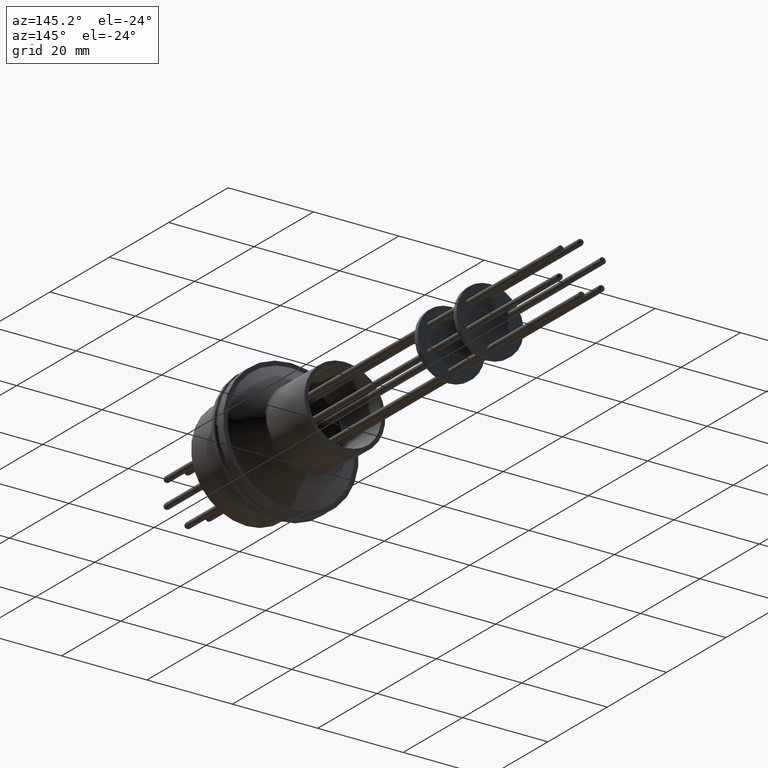
[diagram: clean part render]
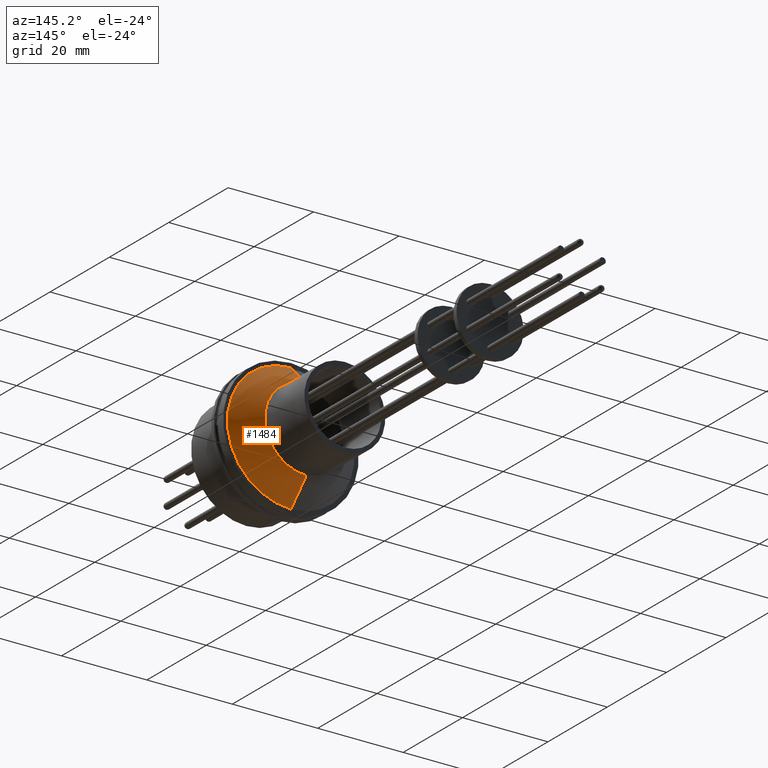
[diagram: same view with one face highlighted and labeled with its STEP entity id]
A machine part, auxiliary view. The second image highlights one B-rep face of the part: STEP entity #1484.
In plain terms, the highlighted conical surface has half-angle 45 deg.
Its self-contained STEP definition (entity closure, byte-faithful):
#1070 = AXIS2_PLACEMENT_3D ( 'NONE', #2669, #2704, #2668 ) ;
#1071 = AXIS2_PLACEMENT_3D ( 'NONE', #2695, #2699, #2700 ) ;
#1293 = AXIS2_PLACEMENT_3D ( 'NONE', #6244, #6245, #6246 ) ;
#1484 = ADVANCED_FACE ( 'NONE', ( #7101 ), #7094, .T. ) ;
#1535 = VERTEX_POINT ( 'NONE', #6089 ) ;
#1562 = VERTEX_POINT ( 'NONE', #6047 ) ;
#1630 = VERTEX_POINT ( 'NONE', #5945 ) ;
#1642 = VERTEX_POINT ( 'NONE', #5933 ) ;
#1927 = EDGE_LOOP ( 'NONE', ( #1953, #1954, #1955, #1956 ) ) ;
#1953 = ORIENTED_EDGE ( 'NONE', *, *, #4164, .T. ) ;
#1954 = ORIENTED_EDGE ( 'NONE', *, *, #4163, .T. ) ;
#1955 = ORIENTED_EDGE ( 'NONE', *, *, #4162, .T. ) ;
#1956 = ORIENTED_EDGE ( 'NONE', *, *, #4161, .F. ) ;
#2668 = DIRECTION ( 'NONE',  ( 0.0000000000000000000, 0.0000000000000000000, -1.000000000000000000 ) ) ;
#2669 = CARTESIAN_POINT ( 'NONE',  ( -0.02489983635234983100, 0.8499457045512126600, -1.707404996040164500E-017 ) ) ;
#2686 = DIRECTION ( 'NONE',  ( 0.0000000000000000000, -0.7071067811865450200, -0.7071067811865500200 ) ) ;
#2692 = CARTESIAN_POINT ( 'NONE',  ( -0.02489983635234983100, 0.6463060942444238700, -0.5859264068711952400 ) ) ;
#2693 = DIRECTION ( 'NONE',  ( 8.659560562354963700E-017, -0.7071067811865450200, 0.7071067811865500200 ) ) ;
#2694 = CARTESIAN_POINT ( 'NONE',  ( -0.02489983635234976200, 0.6463060942444238700, 0.5859264068711952400 ) ) ;
#2695 = CARTESIAN_POINT ( 'NONE',  ( -0.02489983635234983100, 0.6463060942444238700, 0.0000000000000000000 ) ) ;
#2699 = DIRECTION ( 'NONE',  ( -0.0000000000000000000, 1.000000000000000000, -0.0000000000000000000 ) ) ;
#2700 = DIRECTION ( 'NONE',  ( 0.0000000000000000000, 0.0000000000000000000, -1.000000000000000000 ) ) ;
#2704 = DIRECTION ( 'NONE',  ( 1.086719027531339800E-016, -1.000000000000000000, 1.417986611864579900E-016 ) ) ;
#4161 = EDGE_CURVE ( 'NONE', #1535, #1642, #6730, .T. ) ;
#4162 = EDGE_CURVE ( 'NONE', #1630, #1642, #6729, .T. ) ;
#4163 = EDGE_CURVE ( 'NONE', #1562, #1630, #6732, .T. ) ;
#4164 = EDGE_CURVE ( 'NONE', #1535, #1562, #6726, .T. ) ;
#5933 = CARTESIAN_POINT ( 'NONE',  ( -0.02489983635234983100, 0.6463060942444238700, -0.5859264068711952400 ) ) ;
#5945 = CARTESIAN_POINT ( 'NONE',  ( -0.02489983635234976200, 0.6463060942444238700, 0.5859264068711952400 ) ) ;
#6047 = CARTESIAN_POINT ( 'NONE',  ( -0.02489983635234977200, 0.8499457045512126600, 0.3822867965644039000 ) ) ;
#6089 = CARTESIAN_POINT ( 'NONE',  ( -0.02489983635234983100, 0.8499457045512126600, -0.3822867965644039000 ) ) ;
#6244 = CARTESIAN_POINT ( 'NONE',  ( -0.02489983635234983100, 0.6463060942444238700, 0.0000000000000000000 ) ) ;
#6245 = DIRECTION ( 'NONE',  ( 0.0000000000000000000, -1.000000000000000000, 0.0000000000000000000 ) ) ;
#6246 = DIRECTION ( 'NONE',  ( 0.0000000000000000000, 0.0000000000000000000, -1.000000000000000000 ) ) ;
#6725 = VECTOR ( 'NONE', #2693, 39.37007874015748100 ) ;
#6726 = CIRCLE ( 'NONE', #1070, 0.3822867965644039000 ) ;
#6728 = VECTOR ( 'NONE', #2686, 39.37007874015748100 ) ;
#6729 = CIRCLE ( 'NONE', #1071, 0.5859264068711952400 ) ;
#6730 = LINE ( 'NONE', #2692, #6728 ) ;
#6732 = LINE ( 'NONE', #2694, #6725 ) ;
#7094 = CONICAL_SURFACE ( 'NONE', #1293, 0.5859264068711952400, 0.7853981633974518300 ) ;
#7101 = FACE_OUTER_BOUND ( 'NONE', #1927, .T. ) ;